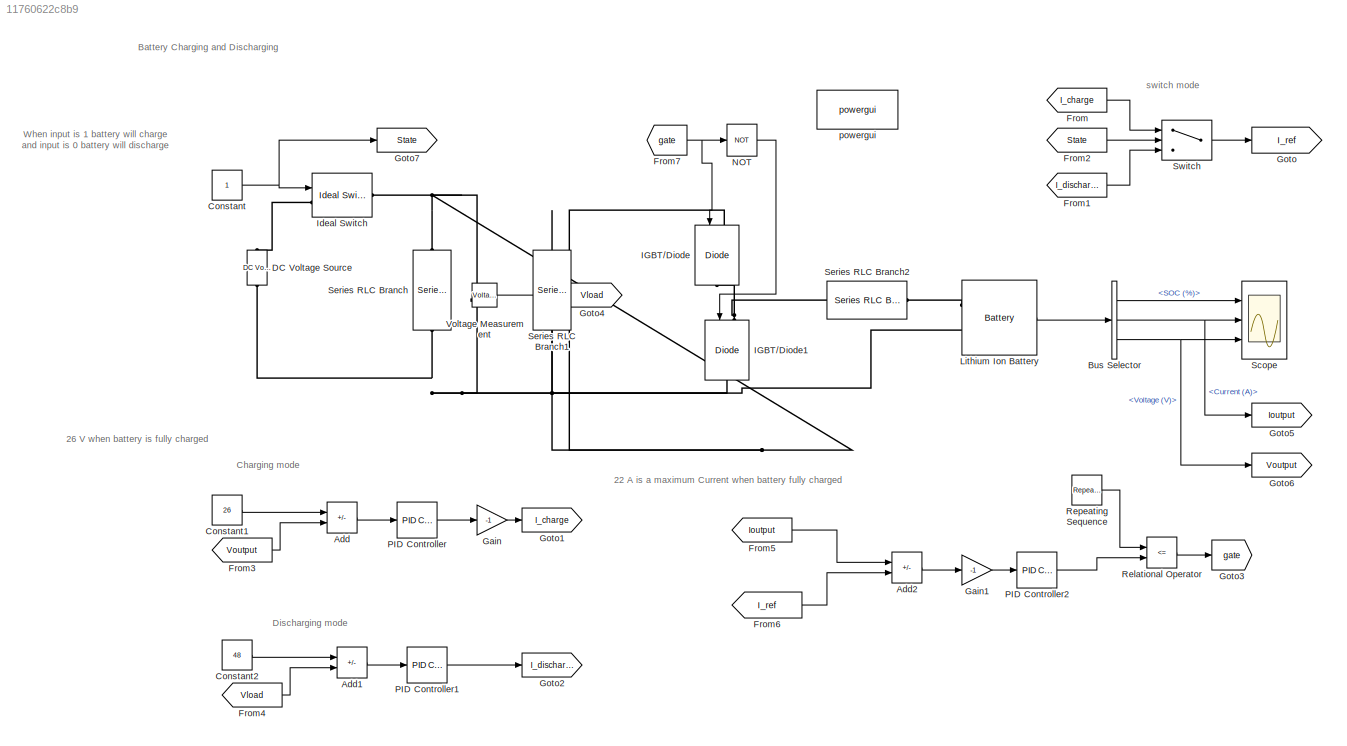
MODEL slx_11760622c8b9
KIND model
CONFIG AbsTol = auto
CONFIG EnableMultiTasking = off
CONFIG FixedStep = auto
CONFIG MaxStep = auto
CONFIG MinStep = auto
CONFIG RelTol = 1e-3
CONFIG SampleTimeConstraint = Unconstrained
CONFIG SolverName = VariableStepAuto
CONFIG StartTime = 0.0
CONFIG StopTime = 10
BLOCK [Sum] Add
  IconShape = rectangular
  Inputs = +-
  Ports = [2, 1]
BLOCK [Sum] Add1
  IconShape = rectangular
  Inputs = +-
  Ports = [2, 1]
BLOCK [Sum] Add2
  IconShape = rectangular
  Inputs = -+
  Ports = [2, 1]
BLOCK [BusSelector] Bus Selector
  OutputSignals = SOC (%),Current (A),Voltage (V)
  Ports = [1, 3]
BLOCK [Constant] Constant
BLOCK [Constant] Constant1
  Value = 26
BLOCK [Constant] Constant2
  Value = 48
BLOCK [Reference] DC Voltage Source  REF=spsDCVoltageSourceLib/DC Voltage Source
  NameLocation = right
  Ports = [0, 0, 0, 0, 0, 1, 1]
  SourceBlock = spsDCVoltageSourceLib/DC Voltage Source
  SourceProductBaseCode = PS
  SourceType = DC Voltage Source
BLOCK [From] From
  GotoTag = I_charge
BLOCK [From] From1
  GotoTag = I_discharge
BLOCK [From] From2
  GotoTag = State
BLOCK [From] From3
  GotoTag = Voutput
BLOCK [From] From4
  GotoTag = Vload
BLOCK [From] From5
  GotoTag = Ioutput
BLOCK [From] From6
  GotoTag = I_ref
BLOCK [From] From7
  GotoTag = gate
BLOCK [Gain] Gain
  Gain = -1
BLOCK [Gain] Gain1
  Gain = -1
BLOCK [Goto] Goto
  GotoTag = I_ref
BLOCK [Goto] Goto1
  GotoTag = I_charge
BLOCK [Goto] Goto2
  GotoTag = I_discharge
BLOCK [Goto] Goto3
  GotoTag = gate
BLOCK [Goto] Goto4
  GotoTag = Vload
BLOCK [Goto] Goto5
  GotoTag = Ioutput
BLOCK [Goto] Goto6
  GotoTag = Voutput
BLOCK [Goto] Goto7
  GotoTag = State
BLOCK [Reference] IGBT//Diode  REF=spsIGBTDiodeLib/IGBT//Diode
  NameLocation = left
  Ports = [1, 0, 0, 0, 0, 1, 1]
  SourceBlock = spsIGBTDiodeLib/IGBT//Diode
  SourceProductBaseCode = PS
  SourceType = IGBT/Diode
BLOCK [Reference] IGBT//Diode1  REF=spsIGBTDiodeLib/IGBT//Diode
  NameLocation = left
  Ports = [1, 0, 0, 0, 0, 1, 1]
  SourceBlock = spsIGBTDiodeLib/IGBT//Diode
  SourceProductBaseCode = PS
  SourceType = IGBT/Diode
BLOCK [Reference] Ideal Switch  REF=spsIdealSwitchLib/Ideal Switch
  Ports = [1, 0, 0, 0, 0, 1, 1]
  SourceBlock = spsIdealSwitchLib/Ideal Switch
  SourceProductBaseCode = PS
  SourceType = Ideal Switch
BLOCK [Reference] Lithium Ion Battery  REF=spsBatteryLib/Battery
  Ports = [0, 1, 0, 0, 0, 2]
  SourceBlock = spsBatteryLib/Battery
  SourceProductBaseCode = PS
  SourceType = Battery
BLOCK [Logic] NOT
  AllPortsSameDT = off
  IconShape = distinctive
  Operator = NOT
  OutDataTypeStr = boolean
  Ports = [1, 1]
BLOCK [Reference] PID Controller  REF=slpidlib/PID Controller
  Ports = [1, 1]
  SourceBlock = slpidlib/PID Controller
  SourceProductBaseCode = SL
  SourceType = PID 1dof
BLOCK [Reference] PID Controller1  REF=slpidlib/PID Controller
  Ports = [1, 1]
  SourceBlock = slpidlib/PID Controller
  SourceProductBaseCode = SL
  SourceType = PID 1dof
BLOCK [Reference] PID Controller2  REF=slpidlib/PID Controller
  Ports = [1, 1]
  SourceBlock = slpidlib/PID Controller
  SourceProductBaseCode = SL
  SourceType = PID 1dof
BLOCK [RelationalOperator] Relational Operator
  InputSameDT = off
  Operator = <=
  OutDataTypeStr = boolean
  Ports = [2, 1]
  RndMeth = Simplest
BLOCK [Reference] Repeating Sequence  REF=simulink/Sources/Repeating
Sequence
  Ports = [0, 1]
  SourceBlock = simulink/Sources/Repeating\nSequence
  SourceProductBaseCode = SL
  SourceType = Repeating table
BLOCK [Scope] Scope
  Floating = off
  NumInputPorts = 3
  Ports = [3]
  ScopeSpecificationString = Simulink.scopes.TimeScopeBlockCfg('CurrentConfiguration', extmgr.ConfigurationSet(extmgr.Configuration('Core','General UI',true,'FigureColor',[0.941176470588235 0.941176470588235 0.941176470588235]),extmgr.Configuration('Core','Source UI',true),extmgr.Configuration('Sources','WiredSimulink',true),extmgr.Configuration('Visuals','Time Domain',true,'SerializedDisplays',{struct('MinYLimReal','44.95715...<+3360ch>
BLOCK [Reference] Series RLC Branch  REF=spsSeriesRLCBranchLib/Series RLC Branch
  NameLocation = left
  Ports = [0, 0, 0, 0, 0, 1, 1]
  SourceBlock = spsSeriesRLCBranchLib/Series RLC Branch
  SourceProductBaseCode = PS
  SourceType = Series RLC Branch
BLOCK [Reference] Series RLC Branch1  REF=spsSeriesRLCBranchLib/Series RLC Branch
  NameLocation = left
  Ports = [0, 0, 0, 0, 0, 1, 1]
  SourceBlock = spsSeriesRLCBranchLib/Series RLC Branch
  SourceProductBaseCode = PS
  SourceType = Series RLC Branch
BLOCK [Reference] Series RLC Branch2  REF=spsSeriesRLCBranchLib/Series RLC Branch
  NameLocation = top
  Ports = [0, 0, 0, 0, 0, 1, 1]
  SourceBlock = spsSeriesRLCBranchLib/Series RLC Branch
  SourceProductBaseCode = PS
  SourceType = Series RLC Branch
BLOCK [Switch] Switch
  Criteria = u2 > Threshold
  InputSameDT = off
  SaturateOnIntegerOverflow = off
BLOCK [Reference] Voltage Measurement  REF=spsVoltageMeasurementLib/Voltage Measurement
  Ports = [0, 1, 0, 0, 0, 2]
  SourceBlock = spsVoltageMeasurementLib/Voltage Measurement
  SourceProductBaseCode = PS
  SourceType = Voltage Measurement
  UserDataPersistent = on
BLOCK [Reference] powergui  REF=spspowerguiLib/powergui
  Ports = []
  Priority = 1
  SourceBlock = spspowerguiLib/powergui
  SourceProductBaseCode = PS
  SourceType = PSB option menu block
ANNOTATION (root): 22 A is a maximum Current when battery fully charged
ANNOTATION (root): 26 V when battery is fully charged
ANNOTATION (root): Battery Charging and Discharging
ANNOTATION (root): Charging mode
ANNOTATION (root): Discharging mode
ANNOTATION (root): When input is 1 battery will charge and input is 0 battery will discharge
ANNOTATION (root): switch mode
LINE Add1:1 -> PID Controller1:1
LINE Add2:1 -> Gain1:1
LINE Add:1 -> PID Controller:1
LINE Bus Selector:1 -> Scope:1
NET Bus Selector:2 -> Goto5:1, Scope:2
NET Bus Selector:3 -> Goto6:1, Scope:3
LINE Constant1:1 -> Add:1
LINE Constant2:1 -> Add1:1
NET Constant:1 -> Goto7:1, Ideal Switch:1
LINE From1:1 -> Switch:3
LINE From2:1 -> Switch:2
LINE From3:1 -> Add:2
LINE From4:1 -> Add1:2
LINE From5:1 -> Add2:1
LINE From6:1 -> Add2:2
NET From7:1 -> IGBT//Diode:1, NOT:1
LINE From:1 -> Switch:1
LINE Gain1:1 -> PID Controller2:1
LINE Gain:1 -> Goto1:1
LINE Lithium Ion Battery:1 -> Bus Selector:1
LINE NOT:1 -> IGBT//Diode1:1
LINE PID Controller1:1 -> Goto2:1
LINE PID Controller2:1 -> Relational Operator:2
LINE PID Controller:1 -> Gain:1
LINE Relational Operator:1 -> Goto3:1
LINE Repeating Sequence:1 -> Relational Operator:1
LINE Switch:1 -> Goto:1
LINE Voltage Measurement:1 -> Goto4:1
PNET net1: DC Voltage Source:LConn1 -- IGBT//Diode1:RConn1 -- Lithium Ion Battery:LConn2 -- Series RLC Branch1:RConn1 -- Series RLC Branch:RConn1 -- Voltage Measurement:LConn2
PLINE DC Voltage Source:RConn1 -- Ideal Switch:LConn1
PNET net2: IGBT//Diode1:LConn1 -- IGBT//Diode:RConn1 -- Series RLC Branch2:RConn1
PNET net3: IGBT//Diode:LConn1 -- Ideal Switch:RConn1 -- Series RLC Branch1:LConn1 -- Series RLC Branch:LConn1 -- Voltage Measurement:LConn1
PLINE Lithium Ion Battery:LConn1 -- Series RLC Branch2:LConn1
note: NET lines group one-source signal fan-out (src -> all destinations, sorted); 1:1 wires keep LINE; PNET lines group multi-terminal physical nets as a canonical sorted terminal list (undirected conserving connections); 2-terminal nets keep the pairwise PLINE form
